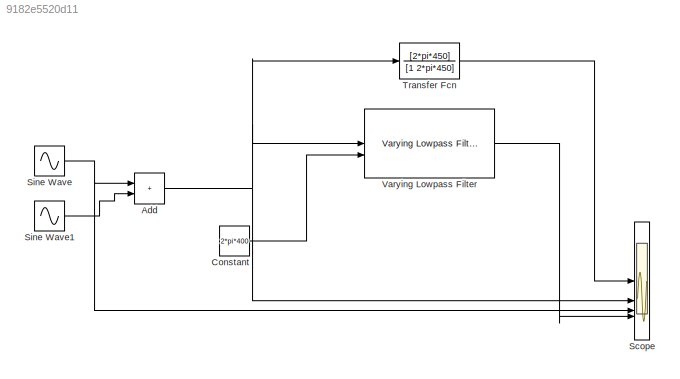
MODEL slx_9182e5520d11
KIND model
CONFIG AbsTol = auto
CONFIG EnableMultiTasking = off
CONFIG FixedStep = 1e-4
CONFIG MaxStep = 1e-3
CONFIG MinStep = auto
CONFIG RelTol = 1e-3
CONFIG SampleTimeConstraint = Unconstrained
CONFIG SolverName = FixedStepAuto
CONFIG StartTime = 0.0
CONFIG StopTime = 1
BLOCK [Sum] Add
  IconShape = rectangular
BLOCK [Constant] Constant
  Value = 2*pi*400
BLOCK [Scope] Scope
  Floating = off
  NumInputPorts = 4
  ScopeSpecificationString = Simulink.scopes.TimeScopeBlockCfg('CurrentConfiguration', extmgr.ConfigurationSet(extmgr.Configuration('Core','General UI',true),extmgr.Configuration('Core','Source UI',true),extmgr.Configuration('Sources','WiredSimulink',true),extmgr.Configuration('Visuals','Time Domain',true,'SerializedDisplays',{struct('MinYLimReal','-7.29748','MaxYLimReal','6.5929','YLabelReal','','MinYLimMag','0.00000','MaxYL...<+1565ch>
BLOCK [Sin] Sine Wave
  Frequency = 2*pi*300
  SampleTime = 0
BLOCK [Sin] Sine Wave1
  Amplitude = 0.5
  Frequency = 2*pi*1000
  SampleTime = 0
BLOCK [TransferFcn] Transfer Fcn
  Denominator = [1 2*pi*450]
  Numerator = [2*pi*450]
BLOCK [Reference] Varying Lowpass Filter  REF=cstblocks/Linear Parameter Varying/Varying Lowpass Filter
  SourceBlock = cstblocks/Linear Parameter Varying/Varying Lowpass Filter
  SourceType = Varying Lowpass Filter
NET Add:1 -> Scope:2, Transfer Fcn:1, Varying Lowpass Filter:1
LINE Constant:1 -> Varying Lowpass Filter:2
LINE Sine Wave1:1 -> Add:2
NET Sine Wave:1 -> Add:1, Scope:3
LINE Transfer Fcn:1 -> Scope:1
LINE Varying Lowpass Filter:1 -> Scope:4
note: NET lines group one-source signal fan-out (src -> all destinations, sorted); 1:1 wires keep LINE
